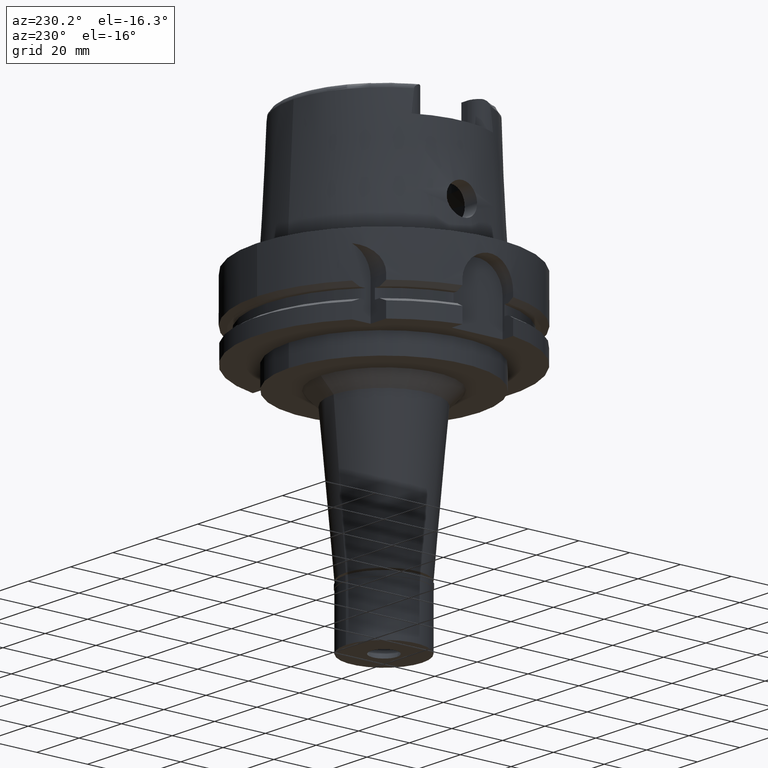
[diagram: clean part render]
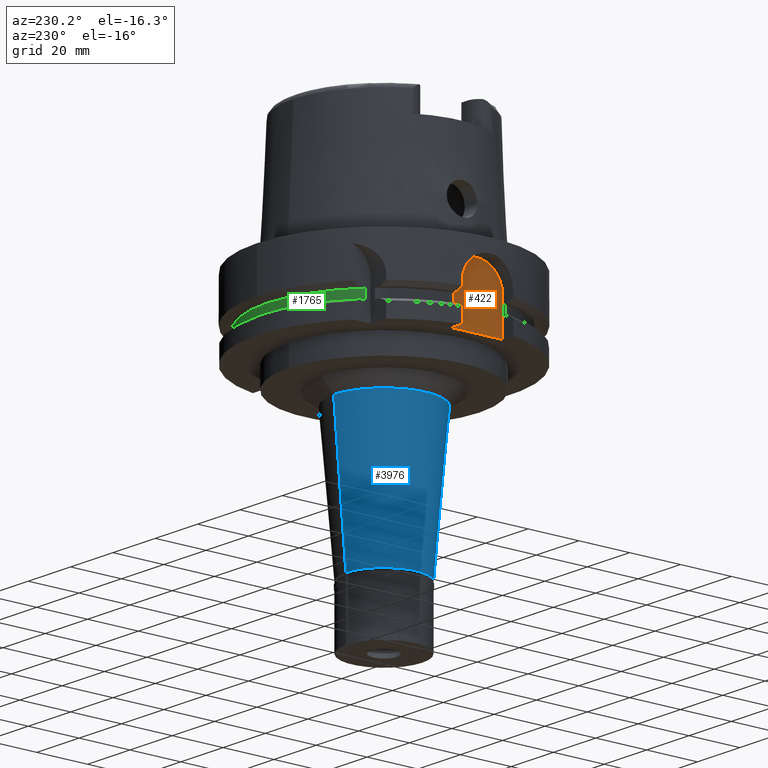
[diagram: same view with three faces highlighted in distinct colors, each labeled with its STEP entity id]
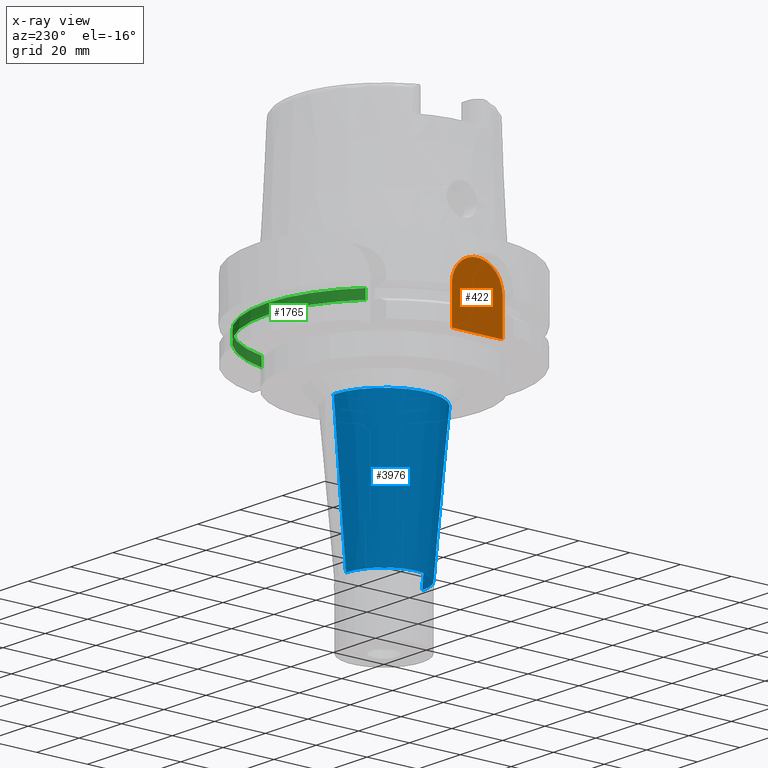
[diagram: x-ray of the same camera — body ghosted, the three highlighted faces saturated]
A machine part, auxiliary view with three faces highlighted in distinct colors.
The next image is the same camera in x-ray (body ghosted, the three faces saturated) — at least one of them is partly hidden behind the body in this view.
Their STEP definitions:

[orange] entity #422 — the highlighted planar face has unit normal (1, 0, 0).
#39 = VECTOR ( 'NONE', #946, 1000.000000000000000 ) ;
#85 = DIRECTION ( 'NONE',  ( 0.0000000000000000000, 0.0000000000000000000, 1.000000000000000000 ) ) ;
#320 = DIRECTION ( 'NONE',  ( 0.0000000000000000000, 1.000000000000000000, 0.0000000000000000000 ) ) ;
#422 = ADVANCED_FACE ( 'NONE', ( #4506 ), #1976, .F. ) ;
#660 = DIRECTION ( 'NONE',  ( 1.000000000000000000, 0.0000000000000000000, 0.0000000000000000000 ) ) ;
#711 = VERTEX_POINT ( 'NONE', #4609 ) ;
#910 = ORIENTED_EDGE ( 'NONE', *, *, #2474, .T. ) ;
#946 = DIRECTION ( 'NONE',  ( 0.0000000000000000000, 1.000000000000000000, 0.0000000000000000000 ) ) ;
#1116 = CARTESIAN_POINT ( 'NONE',  ( -44.00000000000000000, 10.00000000000000000, -15.00000000000000000 ) ) ;
#1675 = VERTEX_POINT ( 'NONE', #2505 ) ;
#1976 = PLANE ( 'NONE',  #3900 ) ;
#2225 = CARTESIAN_POINT ( 'NONE',  ( -44.00000000000000000, 0.0000000000000000000, -15.00000000000000000 ) ) ;
#2331 = LINE ( 'NONE', #3233, #2905 ) ;
#2474 = EDGE_CURVE ( 'NONE', #1675, #711, #4406, .T. ) ;
#2505 = CARTESIAN_POINT ( 'NONE',  ( -44.00000000000000000, -10.00000000000000000, -29.00000000000000000 ) ) ;
#2513 = EDGE_CURVE ( 'NONE', #1675, #3224, #2711, .T. ) ;
#2594 = CIRCLE ( 'NONE', #3773, 10.00000000000000000 ) ;
#2702 = VERTEX_POINT ( 'NONE', #1116 ) ;
#2705 = EDGE_CURVE ( 'NONE', #2702, #3224, #2331, .T. ) ;
#2711 = LINE ( 'NONE', #4800, #39 ) ;
#2731 = ORIENTED_EDGE ( 'NONE', *, *, #2513, .F. ) ;
#2820 = VECTOR ( 'NONE', #85, 1000.000000000000000 ) ;
#2905 = VECTOR ( 'NONE', #4999, 1000.000000000000000 ) ;
#3126 = DIRECTION ( 'NONE',  ( 1.000000000000000000, 0.0000000000000000000, 0.0000000000000000000 ) ) ;
#3153 = DIRECTION ( 'NONE',  ( 0.0000000000000000000, 0.0000000000000000000, 1.000000000000000000 ) ) ;
#3224 = VERTEX_POINT ( 'NONE', #3487 ) ;
#3233 = CARTESIAN_POINT ( 'NONE',  ( -44.00000000000000000, 10.00000000000000000, -15.00000000000000000 ) ) ;
#3487 = CARTESIAN_POINT ( 'NONE',  ( -44.00000000000000000, 10.00000000000000000, -29.00000000000000000 ) ) ;
#3563 = CARTESIAN_POINT ( 'NONE',  ( -44.00000000000000000, -10.00000000000000000, -29.00000000000000000 ) ) ;
#3733 = EDGE_LOOP ( 'NONE', ( #910, #4219, #3951, #2731 ) ) ;
#3773 = AXIS2_PLACEMENT_3D ( 'NONE', #2225, #3126, #3153 ) ;
#3900 = AXIS2_PLACEMENT_3D ( 'NONE', #5011, #660, #320 ) ;
#3951 = ORIENTED_EDGE ( 'NONE', *, *, #2705, .T. ) ;
#4219 = ORIENTED_EDGE ( 'NONE', *, *, #5131, .F. ) ;
#4406 = LINE ( 'NONE', #3563, #2820 ) ;
#4506 = FACE_OUTER_BOUND ( 'NONE', #3733, .T. ) ;
#4609 = CARTESIAN_POINT ( 'NONE',  ( -44.00000000000000000, -10.00000000000000000, -15.00000000000000000 ) ) ;
#4800 = CARTESIAN_POINT ( 'NONE',  ( -44.00000000000000000, -10.00000000000000000, -29.00000000000000000 ) ) ;
#4999 = DIRECTION ( 'NONE',  ( 0.0000000000000000000, 0.0000000000000000000, -1.000000000000000000 ) ) ;
#5011 = CARTESIAN_POINT ( 'NONE',  ( -44.00000000000000000, 0.0000000000000000000, 0.0000000000000000000 ) ) ;
#5131 = EDGE_CURVE ( 'NONE', #2702, #711, #2594, .T. ) ;

[blue] entity #3976 — the highlighted conical surface has half-angle 5 deg.
#147 = CIRCLE ( 'NONE', #4895, 15.00000000000000000 ) ;
#316 = EDGE_CURVE ( 'NONE', #2407, #5192, #147, .T. ) ;
#987 = VECTOR ( 'NONE', #1767, 1000.000000000000114 ) ;
#1225 = ORIENTED_EDGE ( 'NONE', *, *, #316, .T. ) ;
#1423 = DIRECTION ( 'NONE',  ( 0.0000000000000000000, 0.0000000000000000000, 1.000000000000000000 ) ) ;
#1483 = CARTESIAN_POINT ( 'NONE',  ( 0.0000000000000000000, 0.0000000000000000000, -69.59999999999999432 ) ) ;
#1528 = AXIS2_PLACEMENT_3D ( 'NONE', #4049, #4466, #4977 ) ;
#1563 = CARTESIAN_POINT ( 'NONE',  ( 0.0000000000000000000, 19.82937422663000149, -42.00000000000000000 ) ) ;
#1767 = DIRECTION ( 'NONE',  ( 0.0000000000000000000, 0.08715574274764407992, -0.9961946980917467664 ) ) ;
#1996 = FACE_OUTER_BOUND ( 'NONE', #5039, .T. ) ;
#2106 = VECTOR ( 'NONE', #4260, 1000.000000000000114 ) ;
#2407 = VERTEX_POINT ( 'NONE', #3424 ) ;
#2549 = ORIENTED_EDGE ( 'NONE', *, *, #5259, .T. ) ;
#2671 = VERTEX_POINT ( 'NONE', #1563 ) ;
#2791 = ORIENTED_EDGE ( 'NONE', *, *, #2814, .T. ) ;
#2814 = EDGE_CURVE ( 'NONE', #2671, #2407, #5077, .T. ) ;
#2876 = CIRCLE ( 'NONE', #1528, 19.82937422663000149 ) ;
#3093 = LINE ( 'NONE', #4775, #987 ) ;
#3209 = DIRECTION ( 'NONE',  ( 0.0000000000000000000, 1.000000000000000000, 0.0000000000000000000 ) ) ;
#3387 = ORIENTED_EDGE ( 'NONE', *, *, #5026, .F. ) ;
#3424 = CARTESIAN_POINT ( 'NONE',  ( 0.0000000000000000000, 15.00000000000000000, -97.19999999999998863 ) ) ;
#3497 = DIRECTION ( 'NONE',  ( 0.0000000000000000000, 0.0000000000000000000, 1.000000000000000000 ) ) ;
#3862 = CARTESIAN_POINT ( 'NONE',  ( 0.0000000000000000000, 0.0000000000000000000, -97.19999999999998863 ) ) ;
#3976 = ADVANCED_FACE ( 'NONE', ( #1996 ), #5402, .T. ) ;
#4049 = CARTESIAN_POINT ( 'NONE',  ( 0.0000000000000000000, 0.0000000000000000000, -42.00000000000000000 ) ) ;
#4207 = CARTESIAN_POINT ( 'NONE',  ( 0.0000000000000000000, 19.82937422663000149, -42.00000000000000000 ) ) ;
#4260 = DIRECTION ( 'NONE',  ( 0.0000000000000000000, -0.08715574274764407992, -0.9961946980917467664 ) ) ;
#4353 = CARTESIAN_POINT ( 'NONE',  ( 0.0000000000000000000, -15.00000000000000000, -97.19999999999998863 ) ) ;
#4367 = DIRECTION ( 'NONE',  ( 0.0000000000000000000, 1.000000000000000000, 0.0000000000000000000 ) ) ;
#4466 = DIRECTION ( 'NONE',  ( 0.0000000000000000000, 0.0000000000000000000, -1.000000000000000000 ) ) ;
#4534 = VERTEX_POINT ( 'NONE', #5215 ) ;
#4655 = AXIS2_PLACEMENT_3D ( 'NONE', #1483, #1423, #3209 ) ;
#4775 = CARTESIAN_POINT ( 'NONE',  ( 0.0000000000000000000, -19.82937422663000149, -42.00000000000000000 ) ) ;
#4895 = AXIS2_PLACEMENT_3D ( 'NONE', #3862, #3497, #4367 ) ;
#4977 = DIRECTION ( 'NONE',  ( 0.0000000000000000000, -1.000000000000000000, 0.0000000000000000000 ) ) ;
#5026 = EDGE_CURVE ( 'NONE', #4534, #5192, #3093, .T. ) ;
#5039 = EDGE_LOOP ( 'NONE', ( #1225, #3387, #2549, #2791 ) ) ;
#5077 = LINE ( 'NONE', #4207, #2106 ) ;
#5192 = VERTEX_POINT ( 'NONE', #4353 ) ;
#5215 = CARTESIAN_POINT ( 'NONE',  ( 0.0000000000000000000, -19.82937422663000149, -42.00000000000000000 ) ) ;
#5259 = EDGE_CURVE ( 'NONE', #4534, #2671, #2876, .T. ) ;
#5402 = CONICAL_SURFACE ( 'NONE', #4655, 17.41468711331999941, 0.08726646259969973729 ) ;

[green] entity #1765 — the highlighted cylindrical surface (partial cylindrical patch) has radius 46 mm, axis along (0, 0, 1).
#171 = DIRECTION ( 'NONE',  ( 0.0000000000000000000, 1.000000000000000000, 0.0000000000000000000 ) ) ;
#243 = EDGE_CURVE ( 'NONE', #2614, #831, #1143, .T. ) ;
#545 = EDGE_CURVE ( 'NONE', #4866, #2003, #3763, .T. ) ;
#589 = DIRECTION ( 'NONE',  ( 0.0000000000000000000, 0.0000000000000000000, -1.000000000000000000 ) ) ;
#831 = VERTEX_POINT ( 'NONE', #921 ) ;
#921 = CARTESIAN_POINT ( 'NONE',  ( 44.66542286825000474, 11.00000000000000000, -18.12500000000000000 ) ) ;
#1080 = ORIENTED_EDGE ( 'NONE', *, *, #3923, .T. ) ;
#1143 = LINE ( 'NONE', #2861, #5068 ) ;
#1276 = CARTESIAN_POINT ( 'NONE',  ( -31.50000000000000000, 33.52238058372000040, -18.12500000000000000 ) ) ;
#1571 = CYLINDRICAL_SURFACE ( 'NONE', #1823, 46.00000000000000000 ) ;
#1591 = DIRECTION ( 'NONE',  ( 0.0000000000000000000, 0.0000000000000000000, 1.000000000000000000 ) ) ;
#1765 = ADVANCED_FACE ( 'NONE', ( #5442 ), #1571, .T. ) ;
#1823 = AXIS2_PLACEMENT_3D ( 'NONE', #2027, #3182, #4893 ) ;
#1967 = DIRECTION ( 'NONE',  ( 0.9709874536577099979, 0.2391304347826024856, 0.0000000000000000000 ) ) ;
#2003 = VERTEX_POINT ( 'NONE', #2722 ) ;
#2027 = CARTESIAN_POINT ( 'NONE',  ( 0.0000000000000000000, 0.0000000000000000000, -121.4650000000000034 ) ) ;
#2149 = CIRCLE ( 'NONE', #5203, 46.00000000000000000 ) ;
#2246 = CARTESIAN_POINT ( 'NONE',  ( 0.0000000000000000000, 0.0000000000000000000, -18.12500000000000000 ) ) ;
#2279 = AXIS2_PLACEMENT_3D ( 'NONE', #2246, #589, #171 ) ;
#2389 = VECTOR ( 'NONE', #2526, 1000.000000000000000 ) ;
#2526 = DIRECTION ( 'NONE',  ( 0.0000000000000000000, 0.0000000000000000000, -1.000000000000000000 ) ) ;
#2530 = EDGE_CURVE ( 'NONE', #4866, #831, #5443, .T. ) ;
#2614 = VERTEX_POINT ( 'NONE', #4131 ) ;
#2625 = EDGE_LOOP ( 'NONE', ( #5433, #3476, #3491, #1080 ) ) ;
#2722 = CARTESIAN_POINT ( 'NONE',  ( -31.50000000000000000, 33.52238058372000040, -21.87500000000000000 ) ) ;
#2861 = CARTESIAN_POINT ( 'NONE',  ( 44.66542286825000474, 11.00000000000000000, -21.87500000000000000 ) ) ;
#3182 = DIRECTION ( 'NONE',  ( 0.0000000000000000000, 0.0000000000000000000, 1.000000000000000000 ) ) ;
#3262 = DIRECTION ( 'NONE',  ( 0.0000000000000000000, 0.0000000000000000000, 1.000000000000000000 ) ) ;
#3476 = ORIENTED_EDGE ( 'NONE', *, *, #2530, .T. ) ;
#3491 = ORIENTED_EDGE ( 'NONE', *, *, #243, .F. ) ;
#3740 = CARTESIAN_POINT ( 'NONE',  ( -31.50000000000000000, 33.52238058372000040, -18.12500000000000000 ) ) ;
#3763 = LINE ( 'NONE', #3740, #2389 ) ;
#3923 = EDGE_CURVE ( 'NONE', #2614, #2003, #2149, .T. ) ;
#4131 = CARTESIAN_POINT ( 'NONE',  ( 44.66542286825000474, 11.00000000000000000, -21.87500000000000000 ) ) ;
#4866 = VERTEX_POINT ( 'NONE', #1276 ) ;
#4893 = DIRECTION ( 'NONE',  ( 0.0000000000000000000, 1.000000000000000000, 0.0000000000000000000 ) ) ;
#4974 = CARTESIAN_POINT ( 'NONE',  ( 0.0000000000000000000, 0.0000000000000000000, -21.87500000000000000 ) ) ;
#5068 = VECTOR ( 'NONE', #1591, 1000.000000000000000 ) ;
#5203 = AXIS2_PLACEMENT_3D ( 'NONE', #4974, #3262, #1967 ) ;
#5433 = ORIENTED_EDGE ( 'NONE', *, *, #545, .F. ) ;
#5442 = FACE_OUTER_BOUND ( 'NONE', #2625, .T. ) ;
#5443 = CIRCLE ( 'NONE', #2279, 46.00000000000000000 ) ;